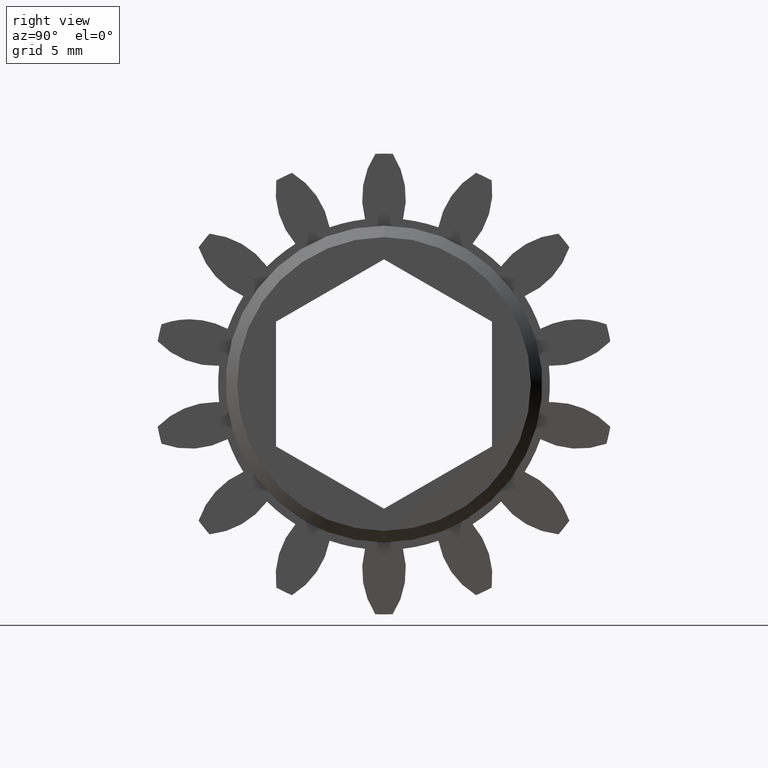
[diagram: clean part render]
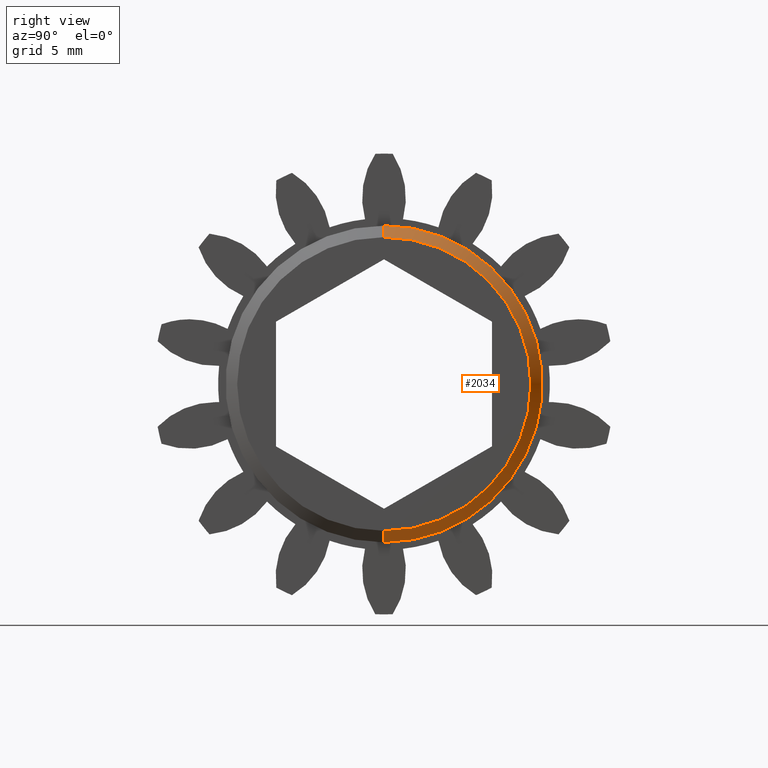
[diagram: same view with one face highlighted and labeled with its STEP entity id]
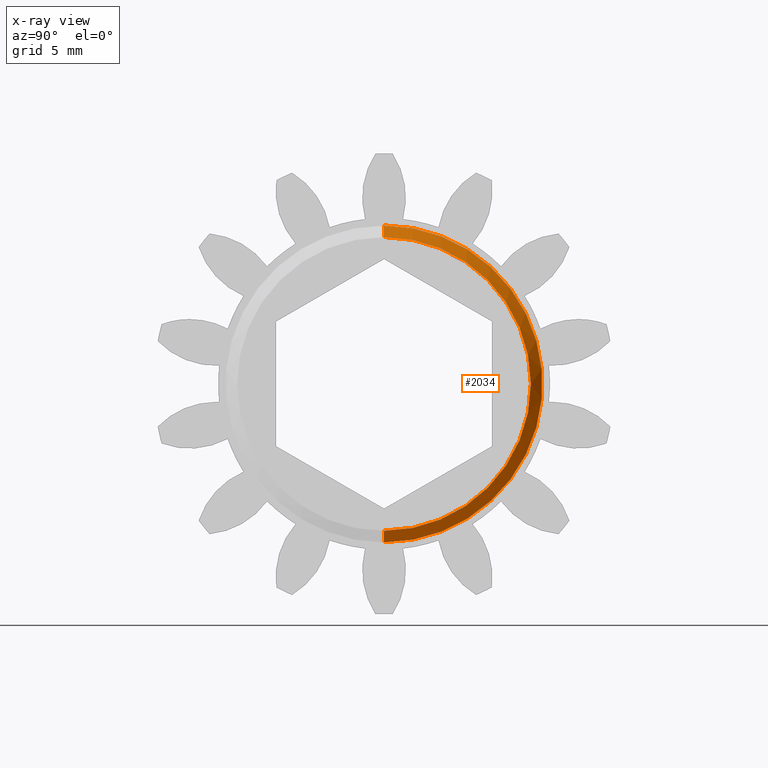
[diagram: x-ray of the same camera — body ghosted, the highlighted face saturated]
A machine part, right view. The second image highlights one B-rep face of the part: STEP entity #2034.
The next image is the same camera in x-ray: the body ghosted, the highlighted face saturated — about 0% of this face is hidden behind the body in this view.
In plain terms, the highlighted conical surface has half-angle 45 deg.
Its self-contained STEP definition (entity closure, byte-faithful):
#37 = CIRCLE ( 'NONE', #758, 0.2549999999999997300 ) ;
#163 = CARTESIAN_POINT ( 'NONE',  ( 0.5759999999999996200, 0.0000000000000000000, 0.2750000000000000200 ) ) ;
#359 = ORIENTED_EDGE ( 'NONE', *, *, #816, .F. ) ;
#360 = CARTESIAN_POINT ( 'NONE',  ( 0.5759999999999996200, 0.0000000000000000000, 0.0000000000000000000 ) ) ;
#476 = FACE_OUTER_BOUND ( 'NONE', #495, .T. ) ;
#495 = EDGE_LOOP ( 'NONE', ( #359, #685, #1461, #1195 ) ) ;
#551 = DIRECTION ( 'NONE',  ( 0.0000000000000000000, 0.0000000000000000000, -1.000000000000000000 ) ) ;
#685 = ORIENTED_EDGE ( 'NONE', *, *, #947, .T. ) ;
#737 = DIRECTION ( 'NONE',  ( -1.000000000000000000, 0.0000000000000000000, 0.0000000000000000000 ) ) ;
#758 = AXIS2_PLACEMENT_3D ( 'NONE', #2277, #993, #551 ) ;
#816 = EDGE_CURVE ( 'NONE', #1377, #1980, #37, .T. ) ;
#835 = EDGE_CURVE ( 'NONE', #1980, #1590, #1858, .T. ) ;
#838 = CARTESIAN_POINT ( 'NONE',  ( 0.5959999999999999700, 0.0000000000000000000, 0.2549999999999997300 ) ) ;
#947 = EDGE_CURVE ( 'NONE', #1377, #2359, #2429, .T. ) ;
#962 = DIRECTION ( 'NONE',  ( 0.0000000000000000000, 0.0000000000000000000, -1.000000000000000000 ) ) ;
#993 = DIRECTION ( 'NONE',  ( 1.000000000000000000, 0.0000000000000000000, 0.0000000000000000000 ) ) ;
#1181 = CIRCLE ( 'NONE', #2463, 0.2750000000000000200 ) ;
#1195 = ORIENTED_EDGE ( 'NONE', *, *, #835, .F. ) ;
#1377 = VERTEX_POINT ( 'NONE', #2528 ) ;
#1430 = VECTOR ( 'NONE', #2388, 39.37007874015748100 ) ;
#1461 = ORIENTED_EDGE ( 'NONE', *, *, #1978, .F. ) ;
#1590 = VERTEX_POINT ( 'NONE', #163 ) ;
#1794 = CONICAL_SURFACE ( 'NONE', #2426, 0.2549999999999997300, 0.7853981633974473900 ) ;
#1829 = DIRECTION ( 'NONE',  ( 0.0000000000000000000, 0.0000000000000000000, 1.000000000000000000 ) ) ;
#1855 = CARTESIAN_POINT ( 'NONE',  ( 0.5959999999999999700, 0.0000000000000000000, 0.0000000000000000000 ) ) ;
#1858 = LINE ( 'NONE', #1949, #1430 ) ;
#1862 = VECTOR ( 'NONE', #2260, 39.37007874015748100 ) ;
#1949 = CARTESIAN_POINT ( 'NONE',  ( 0.5959999999999999700, 0.0000000000000000000, 0.2549999999999997300 ) ) ;
#1978 = EDGE_CURVE ( 'NONE', #1590, #2359, #1181, .T. ) ;
#1980 = VERTEX_POINT ( 'NONE', #838 ) ;
#2034 = ADVANCED_FACE ( 'NONE', ( #476 ), #1794, .T. ) ;
#2068 = CARTESIAN_POINT ( 'NONE',  ( 0.5959999999999999700, 3.122849337825747500E-017, -0.2549999999999997300 ) ) ;
#2260 = DIRECTION ( 'NONE',  ( -0.7071067811865481300, 8.659560562354925500E-017, -0.7071067811865469100 ) ) ;
#2277 = CARTESIAN_POINT ( 'NONE',  ( 0.5959999999999999700, 0.0000000000000000000, 0.0000000000000000000 ) ) ;
#2359 = VERTEX_POINT ( 'NONE', #2481 ) ;
#2388 = DIRECTION ( 'NONE',  ( -0.7071067811865481300, 0.0000000000000000000, 0.7071067811865469100 ) ) ;
#2423 = DIRECTION ( 'NONE',  ( -1.000000000000000000, 0.0000000000000000000, 0.0000000000000000000 ) ) ;
#2426 = AXIS2_PLACEMENT_3D ( 'NONE', #1855, #2423, #1829 ) ;
#2429 = LINE ( 'NONE', #2068, #1862 ) ;
#2463 = AXIS2_PLACEMENT_3D ( 'NONE', #360, #737, #962 ) ;
#2481 = CARTESIAN_POINT ( 'NONE',  ( 0.5759999999999996200, 3.367778697655221900E-017, -0.2750000000000000200 ) ) ;
#2528 = CARTESIAN_POINT ( 'NONE',  ( 0.5959999999999999700, 3.245314017740484400E-017, -0.2549999999999997300 ) ) ;